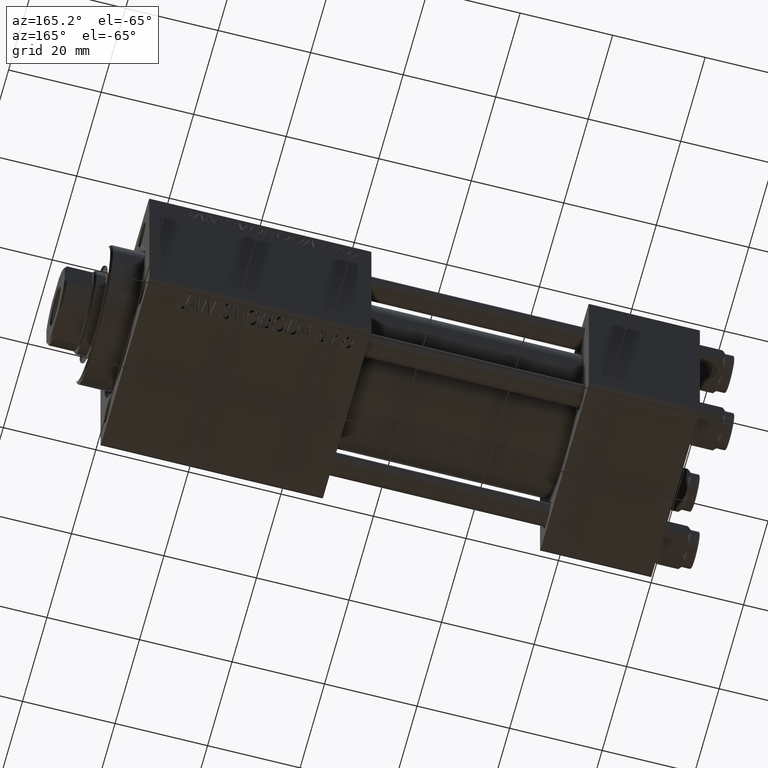
[diagram: clean part render]
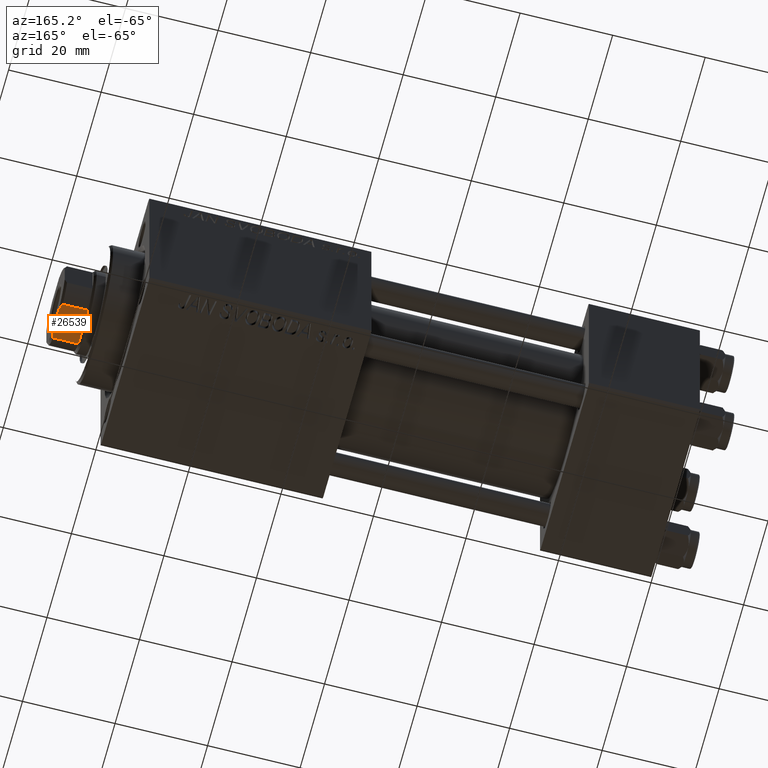
[diagram: same view with one face highlighted and labeled with its STEP entity id]
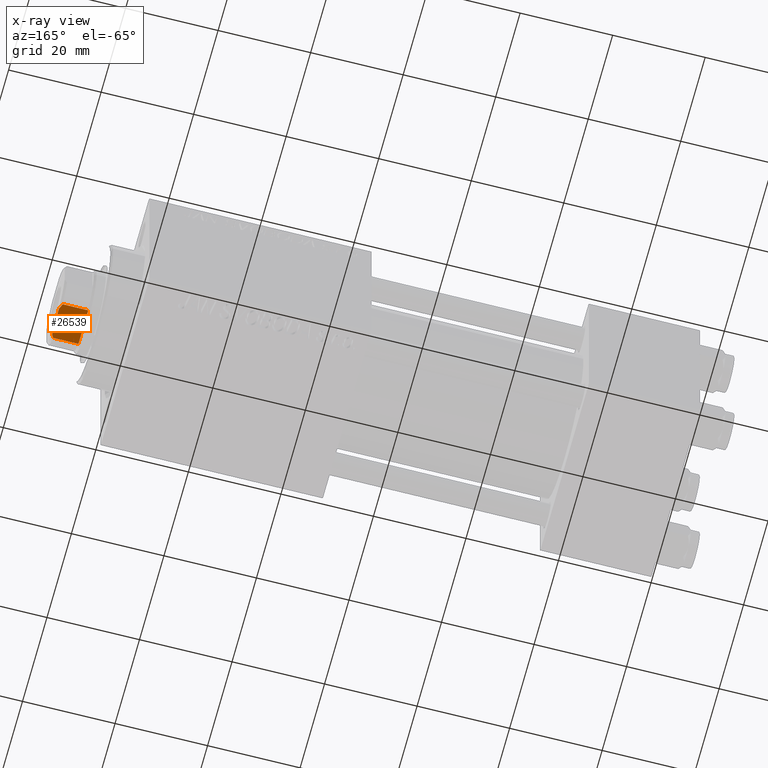
[diagram: x-ray of the same camera — body ghosted, the highlighted face saturated]
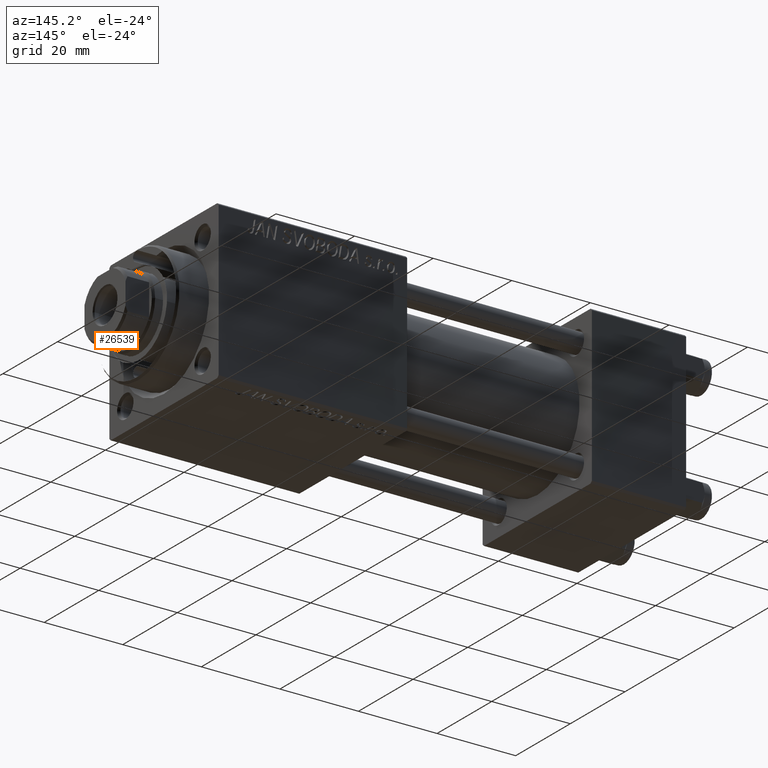
[diagram: same view with one face highlighted and labeled with its STEP entity id]
A machine part, auxiliary view. The second image highlights one B-rep face of the part: STEP entity #26539.
The next image is the same camera in x-ray: the body ghosted, the highlighted face saturated — about 0% of this face is hidden behind the body in this view.
A second angle (auxiliary view) of the same face is appended — the face is thin or edge-on in the first view.
In plain terms, the highlighted planar face has unit normal (0, -0, 1).
Its self-contained STEP definition (entity closure, byte-faithful):
#2083 = CARTESIAN_POINT ( 'NONE',  ( -4.000000000000001776, 7.500000000000000000, 109.4999999999999147 ) ) ;
#3108 = B_SPLINE_CURVE_WITH_KNOTS ( 'NONE', 3,
 ( #23192, #38913, #11233, #46550 ),
 .UNSPECIFIED., .F., .F.,
 ( 4, 4 ),
 ( 0.000000000000000000, 0.001314892599675287306 ),
 .UNSPECIFIED. ) ;
#3209 = LINE ( 'NONE', #12516, #29926 ) ;
#3897 = CARTESIAN_POINT ( 'NONE',  ( 4.000000000000001776, 7.500000000000000000, -0.001000000000001000089 ) ) ;
#4941 = ORIENTED_EDGE ( 'NONE', *, *, #27261, .T. ) ;
#7464 = LINE ( 'NONE', #3897, #16462 ) ;
#7871 = B_SPLINE_CURVE_WITH_KNOTS ( 'NONE', 3,
 ( #2083, #24461, #17582, #29004 ),
 .UNSPECIFIED., .F., .F.,
 ( 4, 4 ),
 ( 9.540979117872439019E-18, 0.001314892599675075236 ),
 .UNSPECIFIED. ) ;
#8063 = LINE ( 'NONE', #35479, #40572 ) ;
#10700 = DIRECTION ( 'NONE',  ( 1.156482317317871478E-16, -1.000000000000000000, 0.000000000000000000 ) ) ;
#11233 = CARTESIAN_POINT ( 'NONE',  ( 3.602928590769617134, 7.500000000000000000, 109.6868571337553675 ) ) ;
#12447 = CARTESIAN_POINT ( 'NONE',  ( 4.000000000000001776, 7.500000000000000000, 109.4999999999998579 ) ) ;
#12516 = CARTESIAN_POINT ( 'NONE',  ( -7.500000000000000000, 7.499999999999998224, 110.0000000000000000 ) ) ;
#12619 = DIRECTION ( 'NONE',  ( -0.000000000000000000, -0.000000000000000000, 1.000000000000000000 ) ) ;
#16462 = VECTOR ( 'NONE', #34886, 1000.000000000000000 ) ;
#17582 = CARTESIAN_POINT ( 'NONE',  ( -3.198463757182625766, 7.499999999999999112, 109.8557317173096521 ) ) ;
#18250 = CARTESIAN_POINT ( 'NONE',  ( 2.783882181414688350, 7.499999999999999112, 110.0000000000000000 ) ) ;
#20563 = DIRECTION ( 'NONE',  ( -1.000000000000000000, -1.156482317317871478E-16, -0.000000000000000000 ) ) ;
#21246 = EDGE_LOOP ( 'NONE', ( #43147, #46601, #29487, #37122, #28519, #4941 ) ) ;
#21798 = VERTEX_POINT ( 'NONE', #18250 ) ;
#22157 = DIRECTION ( 'NONE',  ( 1.000000000000000000, 1.156482317317871478E-16, 0.000000000000000000 ) ) ;
#22884 = EDGE_CURVE ( 'NONE', #49719, #39456, #8063, .T. ) ;
#23192 = CARTESIAN_POINT ( 'NONE',  ( 2.783882181414688350, 7.499999999999999112, 110.0000000000000000 ) ) ;
#24461 = CARTESIAN_POINT ( 'NONE',  ( -3.602928590769687300, 7.500000000000000000, 109.6868571337553959 ) ) ;
#24500 = AXIS2_PLACEMENT_3D ( 'NONE', #41697, #10700, #22157 ) ;
#26271 = EDGE_CURVE ( 'NONE', #21798, #43401, #3108, .T. ) ;
#26539 = ADVANCED_FACE ( 'NONE', ( #44999 ), #41432, .F. ) ;
#27261 = EDGE_CURVE ( 'NONE', #39456, #34693, #7871, .T. ) ;
#27854 = VERTEX_POINT ( 'NONE', #45645 ) ;
#27923 = LINE ( 'NONE', #36035, #27960 ) ;
#27960 = VECTOR ( 'NONE', #20563, 1000.000000000000000 ) ;
#28519 = ORIENTED_EDGE ( 'NONE', *, *, #22884, .T. ) ;
#29004 = CARTESIAN_POINT ( 'NONE',  ( -2.783882181414885082, 7.499999999999999112, 110.0000000000000000 ) ) ;
#29487 = ORIENTED_EDGE ( 'NONE', *, *, #32590, .F. ) ;
#29926 = VECTOR ( 'NONE', #49427, 1000.000000000000000 ) ;
#32590 = EDGE_CURVE ( 'NONE', #27854, #43401, #7464, .T. ) ;
#34693 = VERTEX_POINT ( 'NONE', #45579 ) ;
#34886 = DIRECTION ( 'NONE',  ( -0.000000000000000000, -0.000000000000000000, 1.000000000000000000 ) ) ;
#35479 = CARTESIAN_POINT ( 'NONE',  ( -4.000000000000001776, 7.500000000000000000, -0.001000000000001000089 ) ) ;
#36035 = CARTESIAN_POINT ( 'NONE',  ( -7.500000000000000000, 7.499999999999998224, 104.0000000000000000 ) ) ;
#36256 = CARTESIAN_POINT ( 'NONE',  ( -4.000000000000001776, 7.500000000000000000, 109.4999999999999147 ) ) ;
#36851 = EDGE_CURVE ( 'NONE', #27854, #49719, #27923, .T. ) ;
#37122 = ORIENTED_EDGE ( 'NONE', *, *, #36851, .T. ) ;
#38618 = CARTESIAN_POINT ( 'NONE',  ( -4.000000000000004441, 7.500000000000000000, 103.9999999999999858 ) ) ;
#38913 = CARTESIAN_POINT ( 'NONE',  ( 3.198463757182500977, 7.499999999999999112, 109.8557317173096379 ) ) ;
#39456 = VERTEX_POINT ( 'NONE', #36256 ) ;
#40572 = VECTOR ( 'NONE', #12619, 1000.000000000000000 ) ;
#41432 = PLANE ( 'NONE',  #24500 ) ;
#41697 = CARTESIAN_POINT ( 'NONE',  ( -7.500000000000000000, 7.499999999999998224, 110.0000000000000000 ) ) ;
#43147 = ORIENTED_EDGE ( 'NONE', *, *, #43932, .F. ) ;
#43401 = VERTEX_POINT ( 'NONE', #12447 ) ;
#43932 = EDGE_CURVE ( 'NONE', #21798, #34693, #3209, .T. ) ;
#44999 = FACE_OUTER_BOUND ( 'NONE', #21246, .T. ) ;
#45579 = CARTESIAN_POINT ( 'NONE',  ( -2.783882181414885082, 7.499999999999999112, 110.0000000000000000 ) ) ;
#45645 = CARTESIAN_POINT ( 'NONE',  ( 4.000000000000001776, 7.500000000000000000, 104.0000000000000000 ) ) ;
#46550 = CARTESIAN_POINT ( 'NONE',  ( 4.000000000000001776, 7.500000000000000000, 109.4999999999998579 ) ) ;
#46601 = ORIENTED_EDGE ( 'NONE', *, *, #26271, .T. ) ;
#49427 = DIRECTION ( 'NONE',  ( -1.000000000000000000, -1.156482317317871478E-16, -0.000000000000000000 ) ) ;
#49719 = VERTEX_POINT ( 'NONE', #38618 ) ;